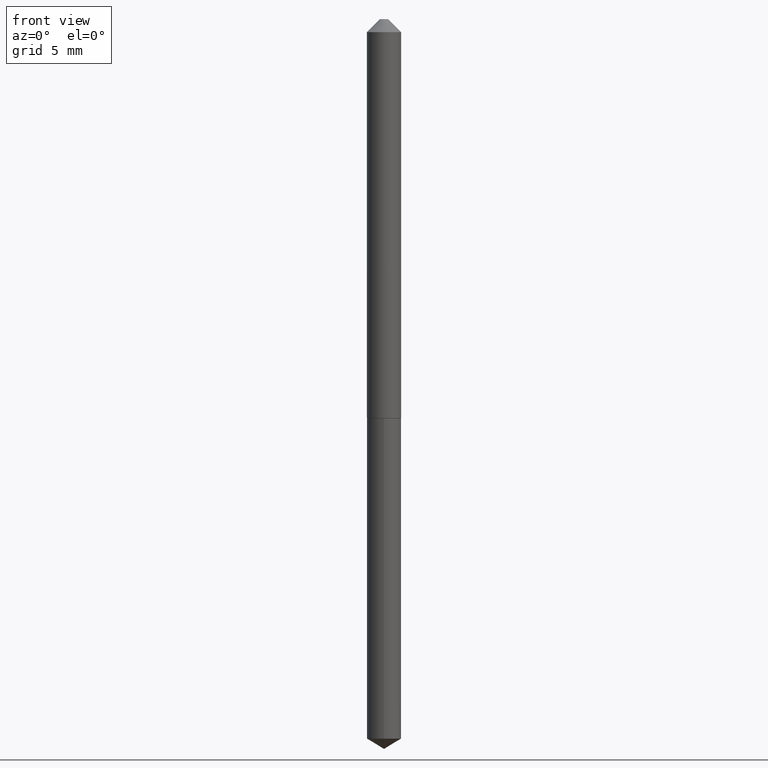
[diagram: clean part render]
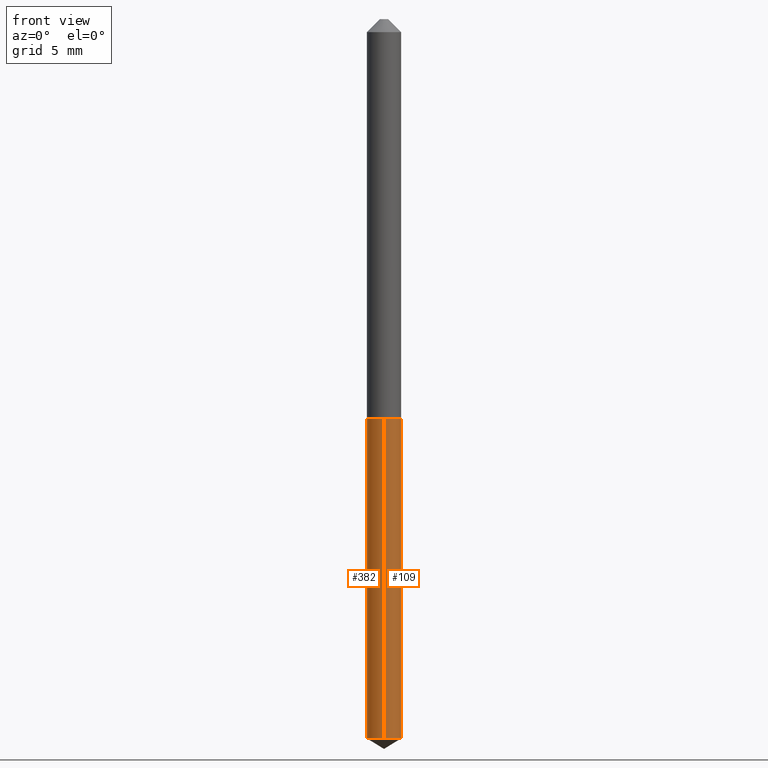
[diagram: same view with one multi-face feature highlighted, each face labeled with its STEP entity id]
A machine part, front view. The highlighted faces form ONE feature: a constant-radius fillet chain: 2 tangent blend faces with common blend radius 1.0414 mm. The faces share edges in the B-rep.
Their STEP definitions:
[1] entity #109 (Cylinder):
#6 = EDGE_LOOP ( 'NONE', ( #208, #207, #28, #62 ) ) ;
#12 = DIRECTION ( 'NONE',  ( -2.445381886799605414E-29, 3.491605812350370359E-15, 1.000000000000000000 ) ) ;
#23 = DIRECTION ( 'NONE',  ( -2.445381886799605414E-29, 3.491605812350370359E-15, 1.000000000000000000 ) ) ;
#28 = ORIENTED_EDGE ( 'NONE', *, *, #142, .F. ) ;
#30 = VERTEX_POINT ( 'NONE', #352 ) ;
#36 = LINE ( 'NONE', #220, #343 ) ;
#39 = CIRCLE ( 'NONE', #373, 0.04100000000000000172 ) ;
#40 = DIRECTION ( 'NONE',  ( -2.445381886799605134E-29, 3.491605812350369964E-15, 1.000000000000000000 ) ) ;
#52 = VERTEX_POINT ( 'NONE', #111 ) ;
#62 = ORIENTED_EDGE ( 'NONE', *, *, #289, .F. ) ;
#67 = AXIS2_PLACEMENT_3D ( 'NONE', #85, #23, #200 ) ;
#73 = EDGE_CURVE ( 'NONE', #91, #359, #36, .T. ) ;
#78 = CYLINDRICAL_SURFACE ( 'NONE', #199, 0.04100000000000000172 ) ;
#85 = CARTESIAN_POINT ( 'NONE',  ( 4.219258803106552970E-29, -6.024174344844561502E-15, -1.725364714619869844 ) ) ;
#91 = VERTEX_POINT ( 'NONE', #130 ) ;
#109 = ADVANCED_FACE ( 'NONE', ( #129 ), #78, .T. ) ;
#111 = CARTESIAN_POINT ( 'NONE',  ( -2.863014697850947350E-16, -0.04100000000000603856, -1.725364714619869400 ) ) ;
#129 = FACE_OUTER_BOUND ( 'NONE', #6, .T. ) ;
#130 = CARTESIAN_POINT ( 'NONE',  ( 2.913225216616833911E-16, 0.04099999999999398570, -1.725364714619870066 ) ) ;
#140 = DIRECTION ( 'NONE',  ( -2.445381886799605134E-29, 3.491605812350369964E-15, 1.000000000000000000 ) ) ;
#142 = EDGE_CURVE ( 'NONE', #30, #359, #39, .T. ) ;
#163 = CARTESIAN_POINT ( 'NONE',  ( 2.340313647519175568E-29, -3.341347641272889965E-15, -0.9569999999999999618 ) ) ;
#166 = DIRECTION ( 'NONE',  ( -2.445381886799605414E-29, 3.491605812350370359E-15, 1.000000000000000000 ) ) ;
#177 = VECTOR ( 'NONE', #140, 39.37007874015748143 ) ;
#191 = CARTESIAN_POINT ( 'NONE',  ( 2.340313647519175568E-29, -3.341347641272889965E-15, -0.9569999999999999618 ) ) ;
#192 = DIRECTION ( 'NONE',  ( -6.982962677686266711E-15, -1.000000000000000000, 3.331521943493003704E-15 ) ) ;
#199 = AXIS2_PLACEMENT_3D ( 'NONE', #163, #12, #245 ) ;
#200 = DIRECTION ( 'NONE',  ( -6.982962677686266711E-15, -1.000000000000000000, 6.663043886986007407E-15 ) ) ;
#207 = ORIENTED_EDGE ( 'NONE', *, *, #73, .T. ) ;
#208 = ORIENTED_EDGE ( 'NONE', *, *, #374, .T. ) ;
#220 = CARTESIAN_POINT ( 'NONE',  ( 2.913225216616644584E-16, 0.04099999999999666411, -0.9570000000000000728 ) ) ;
#245 = DIRECTION ( 'NONE',  ( -6.982962677686266711E-15, -1.000000000000000000, 3.331521943493003704E-15 ) ) ;
#289 = EDGE_CURVE ( 'NONE', #52, #30, #383, .T. ) ;
#291 = CARTESIAN_POINT ( 'NONE',  ( 2.913225216616833911E-16, 0.04099999999999666411, -0.9570000000000000728 ) ) ;
#325 = CIRCLE ( 'NONE', #67, 0.04100000000000000172 ) ;
#343 = VECTOR ( 'NONE', #40, 39.37007874015748143 ) ;
#344 = CARTESIAN_POINT ( 'NONE',  ( -2.863014697851135198E-16, -0.04100000000000333933, -0.9569999999999997398 ) ) ;
#352 = CARTESIAN_POINT ( 'NONE',  ( -2.863014697851135198E-16, -0.04100000000000333933, -0.9569999999999997398 ) ) ;
#359 = VERTEX_POINT ( 'NONE', #291 ) ;
#373 = AXIS2_PLACEMENT_3D ( 'NONE', #191, #166, #192 ) ;
#374 = EDGE_CURVE ( 'NONE', #52, #91, #325, .T. ) ;
#383 = LINE ( 'NONE', #344, #177 ) ;
[2] entity #382 (Cylinder):
#1 = AXIS2_PLACEMENT_3D ( 'NONE', #53, #20, #314 ) ;
#10 = ORIENTED_EDGE ( 'NONE', *, *, #328, .T. ) ;
#20 = DIRECTION ( 'NONE',  ( -2.445381886799605414E-29, 3.491605812350370359E-15, 1.000000000000000000 ) ) ;
#21 = DIRECTION ( 'NONE',  ( -2.445381886799605414E-29, 3.491605812350370359E-15, 1.000000000000000000 ) ) ;
#22 = EDGE_CURVE ( 'NONE', #359, #30, #193, .T. ) ;
#24 = AXIS2_PLACEMENT_3D ( 'NONE', #264, #390, #337 ) ;
#30 = VERTEX_POINT ( 'NONE', #352 ) ;
#31 = CIRCLE ( 'NONE', #1, 0.04100000000000000172 ) ;
#36 = LINE ( 'NONE', #220, #343 ) ;
#40 = DIRECTION ( 'NONE',  ( -2.445381886799605134E-29, 3.491605812350369964E-15, 1.000000000000000000 ) ) ;
#52 = VERTEX_POINT ( 'NONE', #111 ) ;
#53 = CARTESIAN_POINT ( 'NONE',  ( 4.219258803106552970E-29, -6.024174344844561502E-15, -1.725364714619869844 ) ) ;
#73 = EDGE_CURVE ( 'NONE', #91, #359, #36, .T. ) ;
#91 = VERTEX_POINT ( 'NONE', #130 ) ;
#94 = AXIS2_PLACEMENT_3D ( 'NONE', #290, #21, #141 ) ;
#111 = CARTESIAN_POINT ( 'NONE',  ( -2.863014697850947350E-16, -0.04100000000000603856, -1.725364714619869400 ) ) ;
#130 = CARTESIAN_POINT ( 'NONE',  ( 2.913225216616833911E-16, 0.04099999999999398570, -1.725364714619870066 ) ) ;
#140 = DIRECTION ( 'NONE',  ( -2.445381886799605134E-29, 3.491605812350369964E-15, 1.000000000000000000 ) ) ;
#141 = DIRECTION ( 'NONE',  ( -6.982962677686266711E-15, -1.000000000000000000, 3.331521943493003704E-15 ) ) ;
#143 = FACE_OUTER_BOUND ( 'NONE', #308, .T. ) ;
#153 = ORIENTED_EDGE ( 'NONE', *, *, #289, .T. ) ;
#171 = CYLINDRICAL_SURFACE ( 'NONE', #94, 0.04100000000000000172 ) ;
#177 = VECTOR ( 'NONE', #140, 39.37007874015748143 ) ;
#193 = CIRCLE ( 'NONE', #24, 0.04100000000000000172 ) ;
#220 = CARTESIAN_POINT ( 'NONE',  ( 2.913225216616644584E-16, 0.04099999999999666411, -0.9570000000000000728 ) ) ;
#227 = ORIENTED_EDGE ( 'NONE', *, *, #73, .F. ) ;
#264 = CARTESIAN_POINT ( 'NONE',  ( 2.340313647519175568E-29, -3.341347641272889965E-15, -0.9569999999999999618 ) ) ;
#289 = EDGE_CURVE ( 'NONE', #52, #30, #383, .T. ) ;
#290 = CARTESIAN_POINT ( 'NONE',  ( 2.340313647519175568E-29, -3.341347641272889965E-15, -0.9569999999999999618 ) ) ;
#291 = CARTESIAN_POINT ( 'NONE',  ( 2.913225216616833911E-16, 0.04099999999999666411, -0.9570000000000000728 ) ) ;
#292 = ORIENTED_EDGE ( 'NONE', *, *, #22, .F. ) ;
#308 = EDGE_LOOP ( 'NONE', ( #227, #10, #153, #292 ) ) ;
#314 = DIRECTION ( 'NONE',  ( -6.982962677686266711E-15, -1.000000000000000000, 6.663043886986007407E-15 ) ) ;
#328 = EDGE_CURVE ( 'NONE', #91, #52, #31, .T. ) ;
#337 = DIRECTION ( 'NONE',  ( -6.982962677686266711E-15, -1.000000000000000000, 3.331521943493003704E-15 ) ) ;
#343 = VECTOR ( 'NONE', #40, 39.37007874015748143 ) ;
#344 = CARTESIAN_POINT ( 'NONE',  ( -2.863014697851135198E-16, -0.04100000000000333933, -0.9569999999999997398 ) ) ;
#352 = CARTESIAN_POINT ( 'NONE',  ( -2.863014697851135198E-16, -0.04100000000000333933, -0.9569999999999997398 ) ) ;
#359 = VERTEX_POINT ( 'NONE', #291 ) ;
#382 = ADVANCED_FACE ( 'NONE', ( #143 ), #171, .T. ) ;
#383 = LINE ( 'NONE', #344, #177 ) ;
#390 = DIRECTION ( 'NONE',  ( -2.445381886799605414E-29, 3.491605812350370359E-15, 1.000000000000000000 ) ) ;